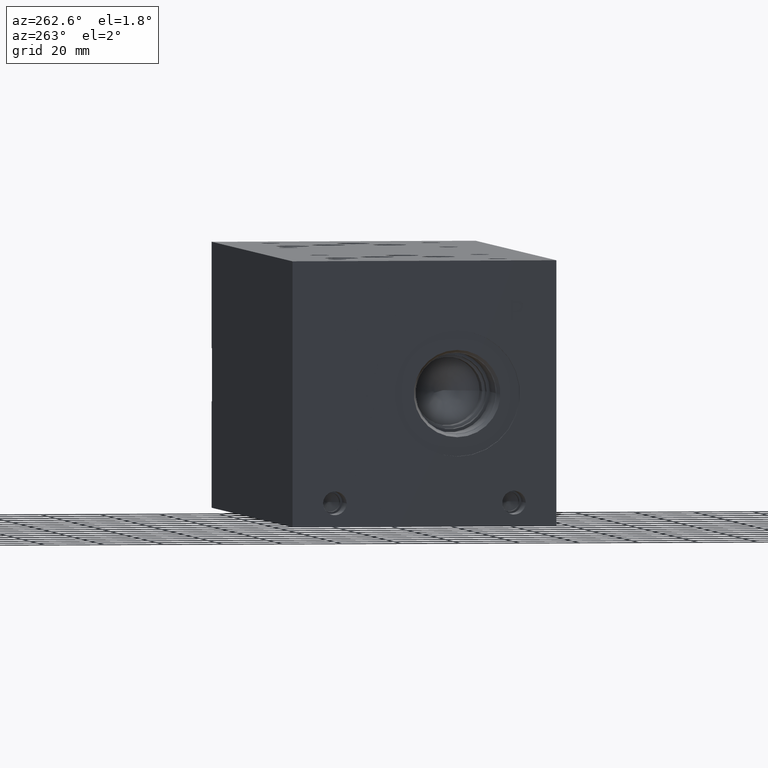
[diagram: clean part render]
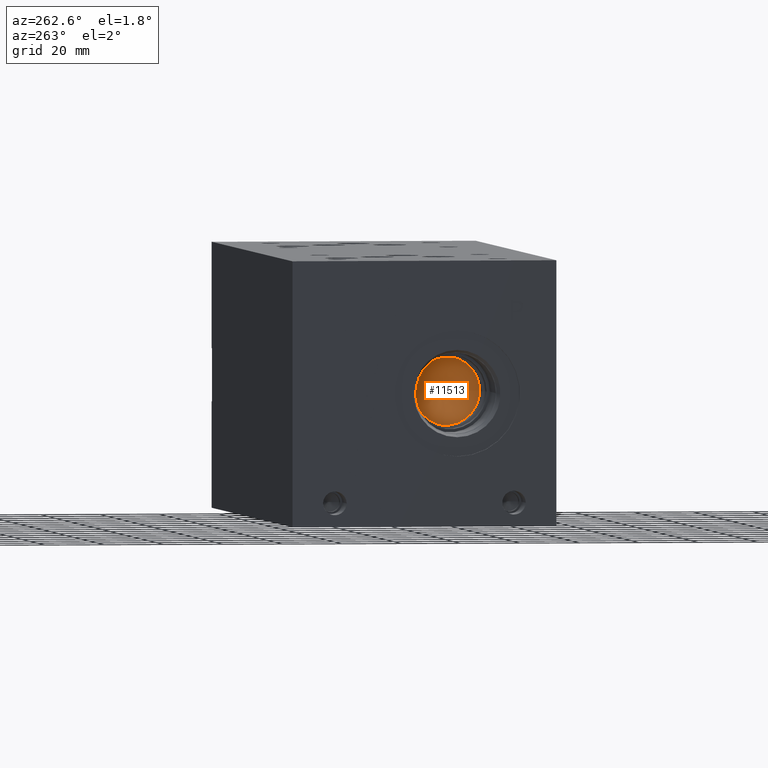
[diagram: same view with one face highlighted and labeled with its STEP entity id]
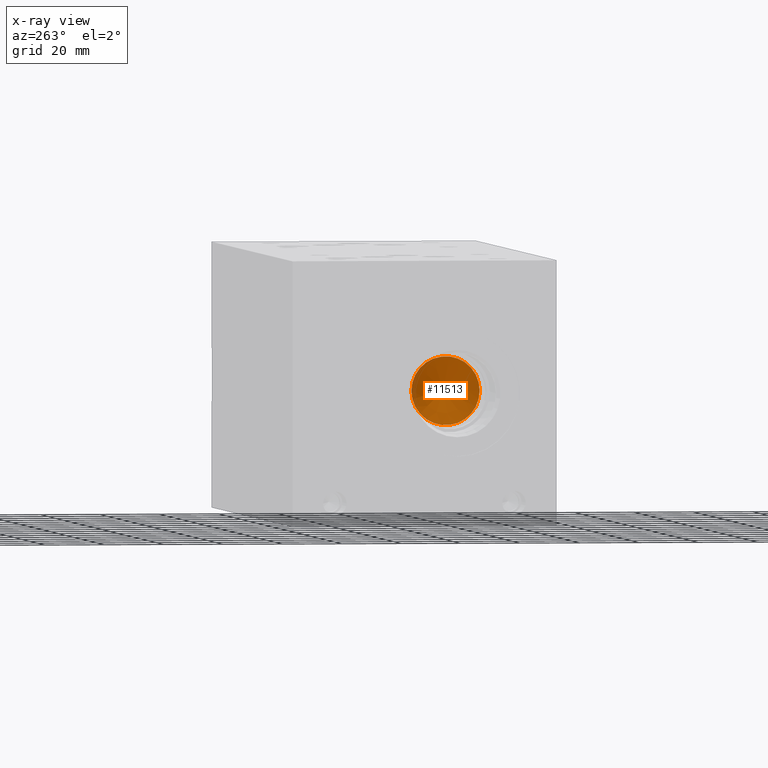
[diagram: x-ray of the same camera — body ghosted, the highlighted face saturated]
A machine part, auxiliary view. The second image highlights one B-rep face of the part: STEP entity #11513.
The next image is the same camera in x-ray: the body ghosted, the highlighted face saturated — about 4% of this face is hidden behind the body in this view.
In plain terms, the highlighted conical surface has half-angle 60 deg.
Its self-contained STEP definition (entity closure, byte-faithful):
#89=CONICAL_SURFACE('',#12018,5.7531,1.0471975511966);
#182=CIRCLE('',#12019,11.5062);
#183=CIRCLE('',#12020,11.5062);
#1424=FACE_OUTER_BOUND('',#2077,.T.);
#2077=EDGE_LOOP('',(#9637,#9638,#9639,#9640));
#3184=LINE('',#19516,#4228);
#4228=VECTOR('',#14022,5.7531);
#5214=VERTEX_POINT('',#19512);
#5215=VERTEX_POINT('',#19513);
#5216=VERTEX_POINT('',#19515);
#6750=EDGE_CURVE('',#5214,#5215,#182,.T.);
#6751=EDGE_CURVE('',#5215,#5216,#3184,.T.);
#6752=EDGE_CURVE('',#5215,#5214,#183,.T.);
#9637=ORIENTED_EDGE('',*,*,#6750,.T.);
#9638=ORIENTED_EDGE('',*,*,#6751,.T.);
#9639=ORIENTED_EDGE('',*,*,#6751,.F.);
#9640=ORIENTED_EDGE('',*,*,#6752,.T.);
#11513=ADVANCED_FACE('',(#1424),#89,.F.);
#12018=AXIS2_PLACEMENT_3D('',#19511,#14018,#14019);
#12019=AXIS2_PLACEMENT_3D('',#19514,#14020,#14021);
#12020=AXIS2_PLACEMENT_3D('',#19517,#14023,#14024);
#14018=DIRECTION('center_axis',(-1.,0.,0.));
#14019=DIRECTION('ref_axis',(0.,1.,0.));
#14020=DIRECTION('center_axis',(-1.,0.,0.));
#14021=DIRECTION('ref_axis',(0.,1.,0.));
#14022=DIRECTION('',(0.5,0.866025403784439,-1.06057523872491E-16));
#14023=DIRECTION('center_axis',(-1.,0.,0.));
#14024=DIRECTION('ref_axis',(0.,1.,0.));
#19511=CARTESIAN_POINT('Origin',(34.1885438336748,33.3248,44.45));
#19512=CARTESIAN_POINT('',(30.86699,44.831,44.45));
#19513=CARTESIAN_POINT('',(30.86699,21.8186,44.45));
#19514=CARTESIAN_POINT('Origin',(30.86699,33.3248,44.45));
#19515=CARTESIAN_POINT('',(37.5100976673497,33.3248,44.45));
#19516=CARTESIAN_POINT('',(34.1885438336748,27.5717,44.45));
#19517=CARTESIAN_POINT('Origin',(30.86699,33.3248,44.45));